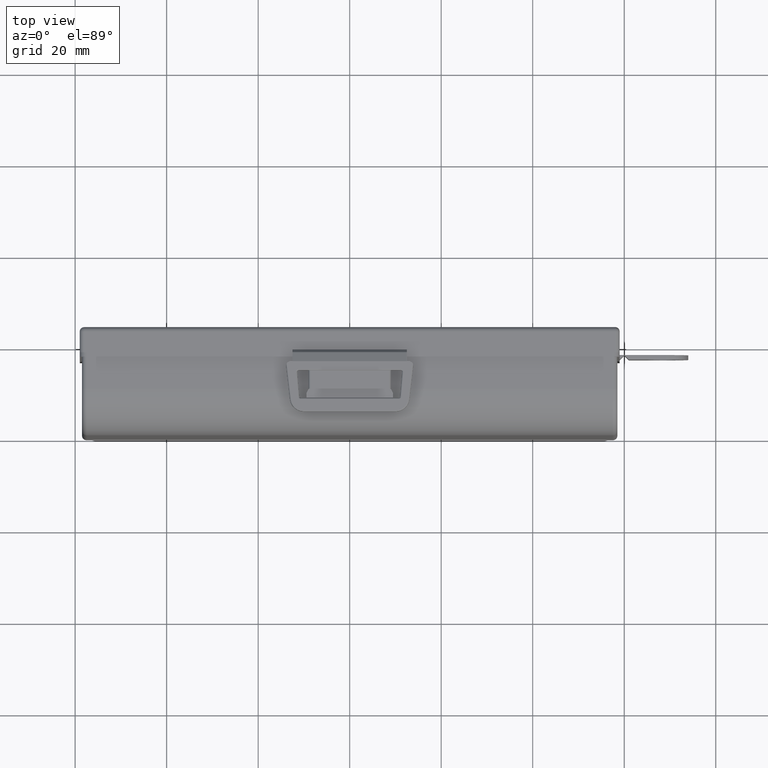
[diagram: clean part render]
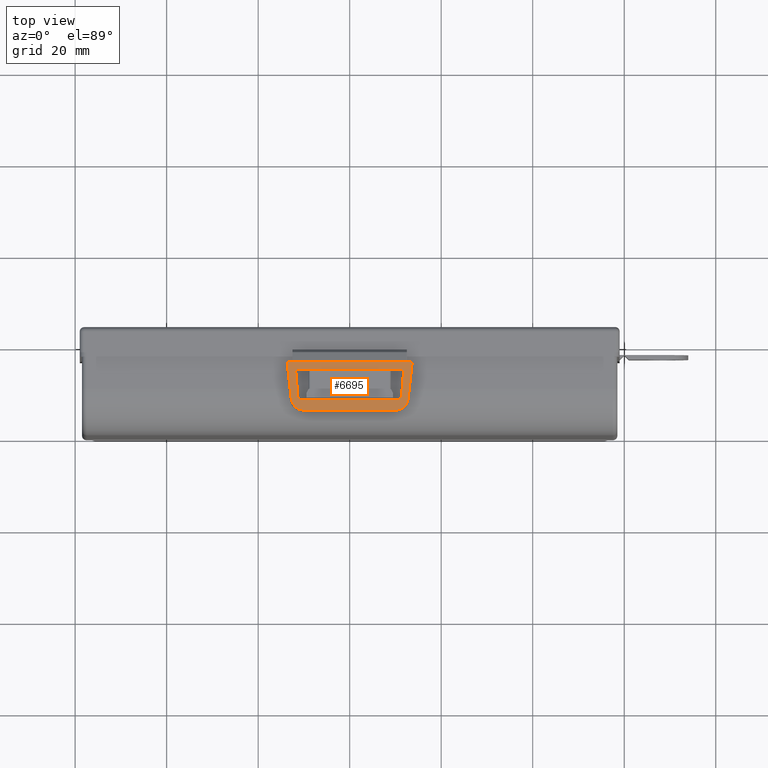
[diagram: same view with one face highlighted and labeled with its STEP entity id]
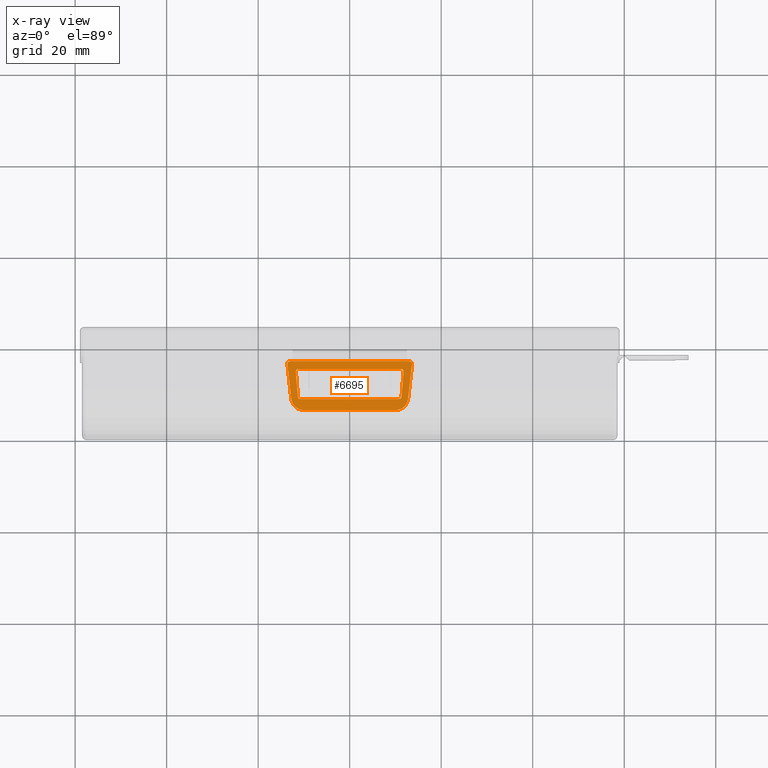
[diagram: x-ray of the same camera — body ghosted, the highlighted face saturated]
A machine part, top view. The second image highlights one B-rep face of the part: STEP entity #6695.
The next image is the same camera in x-ray: the body ghosted, the highlighted face saturated — about 0% of this face is hidden behind the body in this view.
In plain terms, the highlighted planar face has unit normal (0, 0, 1).
Its self-contained STEP definition (entity closure, byte-faithful):
#10 = CARTESIAN_POINT ( 'NONE',  ( 12.50000000000000000, 1.000000000000000000, -10.99999999999999645 ) ) ;
#12 = AXIS2_PLACEMENT_3D ( 'NONE', #5898, #7793, #2787 ) ;
#85 = CIRCLE ( 'NONE', #4577, 2.700000000000000178 ) ;
#147 = VERTEX_POINT ( 'NONE', #3370 ) ;
#151 = AXIS2_PLACEMENT_3D ( 'NONE', #2416, #1249, #5012 ) ;
#326 = CARTESIAN_POINT ( 'NONE',  ( -12.87992773520524814, 1.000000000000000000, -10.99999999999999645 ) ) ;
#367 = FACE_OUTER_BOUND ( 'NONE', #3658, .T. ) ;
#387 = EDGE_CURVE ( 'NONE', #892, #5400, #1089, .T. ) ;
#493 = DIRECTION ( 'NONE',  ( 0.000000000000000000, -0.000000000000000000, 1.000000000000000000 ) ) ;
#495 = ORIENTED_EDGE ( 'NONE', *, *, #3099, .T. ) ;
#515 = VERTEX_POINT ( 'NONE', #3111 ) ;
#612 = DIRECTION ( 'NONE',  ( 0.000000000000000000, 0.000000000000000000, 1.000000000000000000 ) ) ;
#727 = EDGE_CURVE ( 'NONE', #2876, #2923, #1535, .T. ) ;
#885 = ORIENTED_EDGE ( 'NONE', *, *, #4106, .T. ) ;
#892 = VERTEX_POINT ( 'NONE', #1745 ) ;
#996 = EDGE_CURVE ( 'NONE', #7143, #4539, #7448, .T. ) ;
#1043 = ORIENTED_EDGE ( 'NONE', *, *, #3100, .T. ) ;
#1089 = LINE ( 'NONE', #2500, #7970 ) ;
#1171 = ORIENTED_EDGE ( 'NONE', *, *, #6052, .F. ) ;
#1249 = DIRECTION ( 'NONE',  ( -0.000000000000000000, 1.000000000000000000, 0.000000000000000000 ) ) ;
#1285 = DIRECTION ( 'NONE',  ( -0.000000000000000000, 1.000000000000000000, 0.000000000000000000 ) ) ;
#1348 = ORIENTED_EDGE ( 'NONE', *, *, #2274, .T. ) ;
#1477 = CIRCLE ( 'NONE', #151, 1.000000000000000888 ) ;
#1535 = LINE ( 'NONE', #5262, #5464 ) ;
#1557 = VERTEX_POINT ( 'NONE', #7337 ) ;
#1565 = AXIS2_PLACEMENT_3D ( 'NONE', #2547, #3690, #1927 ) ;
#1614 = VECTOR ( 'NONE', #6934, 1000.000000000000000 ) ;
#1621 = LINE ( 'NONE', #3439, #7217 ) ;
#1666 = CARTESIAN_POINT ( 'NONE',  ( -13.65608505916378768, 1.000000000000000000, -10.63053929969948008 ) ) ;
#1694 = CARTESIAN_POINT ( 'NONE',  ( -11.32188759047711990, 1.000000000000000000, -3.250172712087753268 ) ) ;
#1745 = CARTESIAN_POINT ( 'NONE',  ( 12.75433557536616824, 1.000000000000000000, -2.695143842280431468 ) ) ;
#1802 = DIRECTION ( 'NONE',  ( -0.08304547985374000074, -0.000000000000000000, -0.9965457582448795648 ) ) ;
#1882 = LINE ( 'NONE', #8085, #1614 ) ;
#1927 = DIRECTION ( 'NONE',  ( 0.000000000000000000, 0.000000000000000000, 1.000000000000000000 ) ) ;
#2041 = AXIS2_PLACEMENT_3D ( 'NONE', #2452, #2485, #6868 ) ;
#2135 = CIRCLE ( 'NONE', #12, 0.5999999999999998668 ) ;
#2186 = EDGE_CURVE ( 'NONE', #2923, #4895, #3968, .T. ) ;
#2274 = EDGE_CURVE ( 'NONE', #2478, #3606, #6503, .T. ) ;
#2325 = CARTESIAN_POINT ( 'NONE',  ( 10.72396013553019145, 1.000000000000000000, -2.699999999999997513 ) ) ;
#2349 = ORIENTED_EDGE ( 'NONE', *, *, #7344, .F. ) ;
#2352 = VECTOR ( 'NONE', #3379, 1000.000000000000000 ) ;
#2416 = CARTESIAN_POINT ( 'NONE',  ( 12.87992773520524814, 1.000000000000000000, -9.999999999999994671 ) ) ;
#2421 = VERTEX_POINT ( 'NONE', #6246 ) ;
#2452 = CARTESIAN_POINT ( 'NONE',  ( 10.07160138743392785, 1.000000000000000000, -3.000000000000004441 ) ) ;
#2478 = VERTEX_POINT ( 'NONE', #2325 ) ;
#2485 = DIRECTION ( 'NONE',  ( -0.000000000000000000, 1.000000000000000000, 0.000000000000000000 ) ) ;
#2500 = CARTESIAN_POINT ( 'NONE',  ( 13.57545141355805285, 1.000000000000000000, -9.920963218368997971 ) ) ;
#2506 = CARTESIAN_POINT ( 'NONE',  ( 11.17396013553019074, 1.000000000000000000, -9.299999999999998934 ) ) ;
#2511 = ORIENTED_EDGE ( 'NONE', *, *, #727, .T. ) ;
#2519 = ORIENTED_EDGE ( 'NONE', *, *, #387, .T. ) ;
#2547 = CARTESIAN_POINT ( 'NONE',  ( 10.72396013553019145, 1.000000000000000000, -3.299999999999997158 ) ) ;
#2555 = ORIENTED_EDGE ( 'NONE', *, *, #996, .T. ) ;
#2678 = EDGE_CURVE ( 'NONE', #4895, #7143, #6992, .T. ) ;
#2684 = LINE ( 'NONE', #4701, #2352 ) ;
#2760 = VECTOR ( 'NONE', #3300, 1000.000000000000000 ) ;
#2787 = DIRECTION ( 'NONE',  ( 0.000000000000000000, 0.000000000000000000, 1.000000000000000000 ) ) ;
#2855 = ORIENTED_EDGE ( 'NONE', *, *, #4588, .T. ) ;
#2867 = EDGE_LOOP ( 'NONE', ( #2349, #2946, #2875, #885, #1171, #495, #8007, #1348 ) ) ;
#2875 = ORIENTED_EDGE ( 'NONE', *, *, #6036, .F. ) ;
#2876 = VERTEX_POINT ( 'NONE', #8166 ) ;
#2900 = DIRECTION ( 'NONE',  ( 0.000000000000000000, 0.000000000000000000, 1.000000000000000000 ) ) ;
#2923 = VERTEX_POINT ( 'NONE', #10 ) ;
#2929 = EDGE_CURVE ( 'NONE', #2478, #147, #8044, .T. ) ;
#2939 = EDGE_CURVE ( 'NONE', #6329, #515, #4314, .T. ) ;
#2946 = ORIENTED_EDGE ( 'NONE', *, *, #2939, .T. ) ;
#3099 = EDGE_CURVE ( 'NONE', #6241, #147, #1621, .T. ) ;
#3100 = EDGE_CURVE ( 'NONE', #2421, #5083, #85, .T. ) ;
#3111 = CARTESIAN_POINT ( 'NONE',  ( -11.77188759047712097, 1.000000000000000000, -8.650172712087753624 ) ) ;
#3292 = VERTEX_POINT ( 'NONE', #8156 ) ;
#3300 = DIRECTION ( 'NONE',  ( -1.000000000000000000, 0.000000000000000000, 0.000000000000000000 ) ) ;
#3343 = EDGE_CURVE ( 'NONE', #5400, #2876, #1477, .T. ) ;
#3370 = CARTESIAN_POINT ( 'NONE',  ( 11.32188759047711990, 1.000000000000000000, -3.250172712087753268 ) ) ;
#3379 = DIRECTION ( 'NONE',  ( 1.000000000000000000, 0.000000000000000000, -0.000000000000000000 ) ) ;
#3439 = CARTESIAN_POINT ( 'NONE',  ( 10.97482579643898326, 1.000000000000000000, 0.9145688163699154938 ) ) ;
#3486 = CARTESIAN_POINT ( 'NONE',  ( 11.77188759047712097, 1.000000000000000000, -8.650172712087753624 ) ) ;
#3514 = DIRECTION ( 'NONE',  ( -0.000000000000000000, 1.000000000000000000, 0.000000000000000000 ) ) ;
#3599 = CARTESIAN_POINT ( 'NONE',  ( -10.07160138743392785, 1.000000000000000000, -3.000000000000000444 ) ) ;
#3606 = VERTEX_POINT ( 'NONE', #5632 ) ;
#3633 = CARTESIAN_POINT ( 'NONE',  ( -10.07160138743392785, 1.000000000000000000, -0.3000000000000004885 ) ) ;
#3658 = EDGE_LOOP ( 'NONE', ( #6978, #2519, #3825, #2511, #5820, #4962, #2555, #2855, #1043, #6851 ) ) ;
#3690 = DIRECTION ( 'NONE',  ( -0.000000000000000000, 1.000000000000000000, 0.000000000000000000 ) ) ;
#3737 = AXIS2_PLACEMENT_3D ( 'NONE', #7237, #3514, #493 ) ;
#3751 = AXIS2_PLACEMENT_3D ( 'NONE', #3758, #6289, #612 ) ;
#3758 = CARTESIAN_POINT ( 'NONE',  ( -10.72396013553019145, 1.000000000000000000, -3.299999999999997158 ) ) ;
#3806 = CARTESIAN_POINT ( 'NONE',  ( 0.000000000000000000, 1.000000000000000000, -2.699999999999997513 ) ) ;
#3825 = ORIENTED_EDGE ( 'NONE', *, *, #3343, .T. ) ;
#3888 = VECTOR ( 'NONE', #7697, 1000.000000000000000 ) ;
#3905 = DIRECTION ( 'NONE',  ( -0.000000000000000000, 1.000000000000000000, 0.000000000000000000 ) ) ;
#3968 = LINE ( 'NONE', #7742, #3888 ) ;
#4106 = EDGE_CURVE ( 'NONE', #1557, #7626, #2684, .T. ) ;
#4180 = DIRECTION ( 'NONE',  ( -0.08304547985374000074, -0.000000000000000000, 0.9965457582448795648 ) ) ;
#4274 = CIRCLE ( 'NONE', #2041, 2.700000000000000178 ) ;
#4312 = VECTOR ( 'NONE', #1802, 1000.000000000000114 ) ;
#4314 = LINE ( 'NONE', #4439, #4312 ) ;
#4439 = CARTESIAN_POINT ( 'NONE',  ( -10.97482579643898326, 1.000000000000000000, 0.9145688163699154938 ) ) ;
#4523 = CARTESIAN_POINT ( 'NONE',  ( 13.65608505916378945, 1.000000000000000000, -10.63053929969947831 ) ) ;
#4539 = VERTEX_POINT ( 'NONE', #1666 ) ;
#4551 = CARTESIAN_POINT ( 'NONE',  ( -12.87992773520524814, 1.000000000000000000, -9.999999999999994671 ) ) ;
#4577 = AXIS2_PLACEMENT_3D ( 'NONE', #3599, #6095, #2900 ) ;
#4588 = EDGE_CURVE ( 'NONE', #4539, #2421, #7868, .T. ) ;
#4701 = CARTESIAN_POINT ( 'NONE',  ( 0.000000000000000000, 1.000000000000000000, -9.299999999999998934 ) ) ;
#4799 = DIRECTION ( 'NONE',  ( -1.000000000000000000, 0.000000000000000000, 0.000000000000000000 ) ) ;
#4895 = VERTEX_POINT ( 'NONE', #7273 ) ;
#4912 = AXIS2_PLACEMENT_3D ( 'NONE', #5309, #3905, #7755 ) ;
#4945 = AXIS2_PLACEMENT_3D ( 'NONE', #4551, #1285, #6426 ) ;
#4962 = ORIENTED_EDGE ( 'NONE', *, *, #2678, .T. ) ;
#5012 = DIRECTION ( 'NONE',  ( 0.000000000000000000, 0.000000000000000000, 1.000000000000000000 ) ) ;
#5083 = VERTEX_POINT ( 'NONE', #3633 ) ;
#5262 = CARTESIAN_POINT ( 'NONE',  ( 14.00000000000000000, 1.000000000000000000, -10.99999999999999645 ) ) ;
#5309 = CARTESIAN_POINT ( 'NONE',  ( 11.17396013553019074, 1.000000000000000000, -8.699999999999999289 ) ) ;
#5400 = VERTEX_POINT ( 'NONE', #4523 ) ;
#5464 = VECTOR ( 'NONE', #4799, 1000.000000000000000 ) ;
#5471 = DIRECTION ( 'NONE',  ( 0.1129096880442863743, 0.000000000000000000, 0.9936052547897187281 ) ) ;
#5632 = CARTESIAN_POINT ( 'NONE',  ( -10.72396013553019145, 1.000000000000000000, -2.699999999999997513 ) ) ;
#5720 = DIRECTION ( 'NONE',  ( -1.000000000000000000, -0.000000000000000000, -0.000000000000000000 ) ) ;
#5820 = ORIENTED_EDGE ( 'NONE', *, *, #2186, .T. ) ;
#5898 = CARTESIAN_POINT ( 'NONE',  ( -11.17396013553019074, 1.000000000000000000, -8.699999999999999289 ) ) ;
#6036 = EDGE_CURVE ( 'NONE', #1557, #515, #2135, .T. ) ;
#6047 = FACE_BOUND ( 'NONE', #2867, .T. ) ;
#6052 = EDGE_CURVE ( 'NONE', #6241, #7626, #6371, .T. ) ;
#6092 = CARTESIAN_POINT ( 'NONE',  ( -12.75433557536616824, 1.000000000000000000, -2.695143842280429247 ) ) ;
#6095 = DIRECTION ( 'NONE',  ( -0.000000000000000000, 1.000000000000000000, 0.000000000000000000 ) ) ;
#6241 = VERTEX_POINT ( 'NONE', #3486 ) ;
#6246 = CARTESIAN_POINT ( 'NONE',  ( -12.75433557536616824, 1.000000000000000000, -2.695143842280427027 ) ) ;
#6289 = DIRECTION ( 'NONE',  ( -0.000000000000000000, 1.000000000000000000, 0.000000000000000000 ) ) ;
#6329 = VERTEX_POINT ( 'NONE', #1694 ) ;
#6371 = CIRCLE ( 'NONE', #4912, 0.5999999999999998668 ) ;
#6426 = DIRECTION ( 'NONE',  ( 0.000000000000000000, 0.000000000000000000, 1.000000000000000000 ) ) ;
#6503 = LINE ( 'NONE', #3806, #6515 ) ;
#6515 = VECTOR ( 'NONE', #5720, 1000.000000000000000 ) ;
#6695 = ADVANCED_FACE ( 'NONE', ( #6047, #367 ), #7276, .T. ) ;
#6851 = ORIENTED_EDGE ( 'NONE', *, *, #7701, .T. ) ;
#6868 = DIRECTION ( 'NONE',  ( 0.000000000000000000, 0.000000000000000000, 1.000000000000000000 ) ) ;
#6931 = EDGE_CURVE ( 'NONE', #3292, #892, #4274, .T. ) ;
#6934 = DIRECTION ( 'NONE',  ( 1.000000000000000000, 0.000000000000000000, -1.836970198721030674E-16 ) ) ;
#6978 = ORIENTED_EDGE ( 'NONE', *, *, #6931, .T. ) ;
#6992 = LINE ( 'NONE', #7649, #2760 ) ;
#7143 = VERTEX_POINT ( 'NONE', #326 ) ;
#7217 = VECTOR ( 'NONE', #4180, 1000.000000000000114 ) ;
#7237 = CARTESIAN_POINT ( 'NONE',  ( 0.000000000000000000, 1.000000000000000000, 0.000000000000000000 ) ) ;
#7273 = CARTESIAN_POINT ( 'NONE',  ( -12.50000000000000178, 1.000000000000000000, -10.99999999999999645 ) ) ;
#7276 = PLANE ( 'NONE',  #3737 ) ;
#7314 = CIRCLE ( 'NONE', #3751, 0.5999999999999998668 ) ;
#7337 = CARTESIAN_POINT ( 'NONE',  ( -11.17396013553019074, 1.000000000000000000, -9.299999999999998934 ) ) ;
#7344 = EDGE_CURVE ( 'NONE', #6329, #3606, #7314, .T. ) ;
#7448 = CIRCLE ( 'NONE', #4945, 1.000000000000000888 ) ;
#7626 = VERTEX_POINT ( 'NONE', #2506 ) ;
#7640 = VECTOR ( 'NONE', #5471, 1000.000000000000114 ) ;
#7649 = CARTESIAN_POINT ( 'NONE',  ( 14.00000000000000000, 1.000000000000000000, -10.99999999999999645 ) ) ;
#7697 = DIRECTION ( 'NONE',  ( -1.000000000000000000, -0.000000000000000000, -0.000000000000000000 ) ) ;
#7701 = EDGE_CURVE ( 'NONE', #5083, #3292, #1882, .T. ) ;
#7742 = CARTESIAN_POINT ( 'NONE',  ( 12.50000000000000000, 1.000000000000000000, -10.99999999999999645 ) ) ;
#7755 = DIRECTION ( 'NONE',  ( 0.000000000000000000, 0.000000000000000000, 1.000000000000000000 ) ) ;
#7793 = DIRECTION ( 'NONE',  ( -0.000000000000000000, 1.000000000000000000, 0.000000000000000000 ) ) ;
#7868 = LINE ( 'NONE', #6092, #7640 ) ;
#7970 = VECTOR ( 'NONE', #8000, 1000.000000000000114 ) ;
#8000 = DIRECTION ( 'NONE',  ( 0.1129096880442864298, 0.000000000000000000, -0.9936052547897187281 ) ) ;
#8007 = ORIENTED_EDGE ( 'NONE', *, *, #2929, .F. ) ;
#8044 = CIRCLE ( 'NONE', #1565, 0.5999999999999998668 ) ;
#8085 = CARTESIAN_POINT ( 'NONE',  ( 10.07160138743392963, 1.000000000000000000, -0.3000000000000041522 ) ) ;
#8156 = CARTESIAN_POINT ( 'NONE',  ( 10.07160138743392963, 1.000000000000000000, -0.3000000000000041522 ) ) ;
#8166 = CARTESIAN_POINT ( 'NONE',  ( 12.87992773520524814, 1.000000000000000000, -10.99999999999999645 ) ) ;